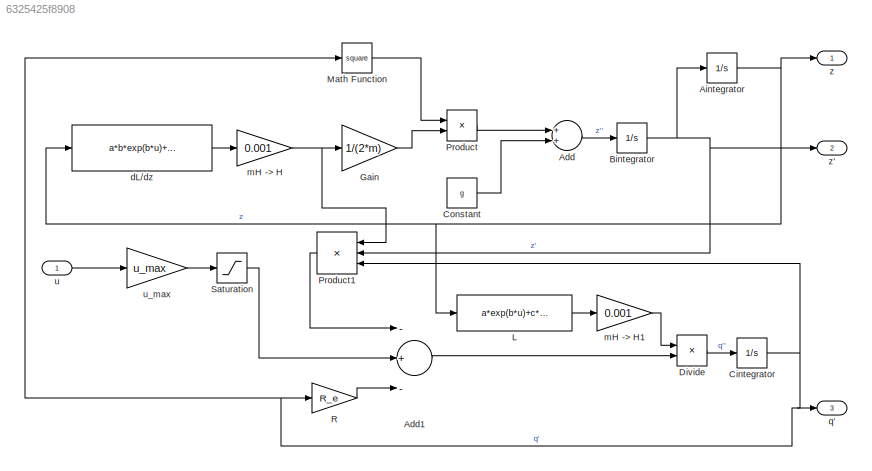
MODEL slx_6325425f8908
KIND model
CONFIG AbsTol = auto
CONFIG FixedStep = auto
CONFIG MaxStep = auto
CONFIG MinStep = auto
CONFIG RelTol = 1e-3
CONFIG SampleTimeConstraint = Unconstrained
CONFIG Solver = ode45
CONFIG SolverMode = Auto
CONFIG SolverName = ode45
CONFIG StartTime = 0.0
CONFIG StopTime = 10.0
WORKSPACE source: MATLAB code (in-file)
WORKSPACE m = 0.058
WORKSPACE u_max = 12.28
WORKSPACE g = 9.81
WORKSPACE R_e = 4.38
WORKSPACE a = 27.62
WORKSPACE b = -304.84
WORKSPACE c = 112.75
WORKSPACE d = -2.74
WORKSPACE z0 = 0.010  (= 0.01)
WORKSPACE z_min = 0
WORKSPACE z_max = 0.025
WORKSPACE i_min = 0
WORKSPACE v0 = 0.0  (= 0)
WORKSPACE sim_time = 1.5
BLOCK [Sum] Add
  InputSameDT = off
  OutDataTypeStr = Inherit: Inherit via internal rule
  Ports = [2, 1]
  SaturateOnIntegerOverflow = off
BLOCK [Sum] Add1
  InputSameDT = off
  Inputs = -+-
  OutDataTypeStr = Inherit: Inherit via internal rule
  Ports = [3, 1]
  SaturateOnIntegerOverflow = off
BLOCK [Integrator] Aintegrator
  InitialCondition = z0
  LimitOutput = on
  LowerSaturationLimit = z_min
  Ports = [1, 1]
  UpperSaturationLimit = z_max
BLOCK [Integrator] Bintegrator
  Ports = [1, 1]
BLOCK [Integrator] Cintegrator
  LimitOutput = on
  LowerSaturationLimit = i_min
  Ports = [1, 1]
BLOCK [Constant] Constant
  Value = g
BLOCK [Product] Divide
  InputSameDT = off
  Inputs = /*
  OutDataTypeStr = Inherit: Inherit via internal rule
  Ports = [2, 1]
  RndMeth = Floor
  SaturateOnIntegerOverflow = off
BLOCK [Gain] Gain
  Gain = 1/(2*m)
  OutDataTypeStr = Inherit: Inherit via internal rule
  ParamDataTypeStr = Inherit: Inherit via internal rule
  SaturateOnIntegerOverflow = off
BLOCK [Fcn] L
  Expr = a*exp(b*u)+c*exp(d*u)
BLOCK [Math] Math Function
  Operator = square
  Ports = [1, 1]
BLOCK [Product] Product
  InputSameDT = off
  OutDataTypeStr = Inherit: Inherit via internal rule
  Ports = [2, 1]
  RndMeth = Floor
  SaturateOnIntegerOverflow = off
BLOCK [Product] Product1
  InputSameDT = off
  Inputs = 3
  OutDataTypeStr = Inherit: Inherit via internal rule
  Ports = [3, 1]
  RndMeth = Floor
  SaturateOnIntegerOverflow = off
BLOCK [Gain] R
  Gain = R_e
  OutDataTypeStr = Inherit: Inherit via internal rule
  ParamDataTypeStr = Inherit: Inherit via internal rule
  SaturateOnIntegerOverflow = off
BLOCK [Saturate] Saturation
  InputPortMap = u0
  LowerLimit = 0
  Ports = [1, 1]
  UpperLimit = u_max
BLOCK [Fcn] dL//dz
  Expr = a*b*exp(b*u)+c*d*exp(d*u)
BLOCK [Gain] mH -> H
  Gain = 0.001
  OutDataTypeStr = Inherit: Inherit via internal rule
  ParamDataTypeStr = Inherit: Inherit via internal rule
  SaturateOnIntegerOverflow = off
BLOCK [Gain] mH -> H1
  Gain = 0.001
  OutDataTypeStr = Inherit: Inherit via internal rule
  ParamDataTypeStr = Inherit: Inherit via internal rule
  SaturateOnIntegerOverflow = off
BLOCK [Outport] q'
  IconDisplay = Port number
  Port = 3
BLOCK [Inport] u
  IconDisplay = Port number
BLOCK [Gain] u_max
  Gain = u_max
  OutDataTypeStr = Inherit: Inherit via internal rule
  ParamDataTypeStr = Inherit: Inherit via internal rule
  SaturateOnIntegerOverflow = off
BLOCK [Outport] z
  IconDisplay = Port number
BLOCK [Outport] z'
  IconDisplay = Port number
  Port = 2
LINE Add1:1 -> Divide:2
LINE Add:1 -> Bintegrator:1
NET Aintegrator:1 -> L:1, dL//dz:1, z:1
NET Bintegrator:1 -> Aintegrator:1, Product1:2, z':1
NET Cintegrator:1 -> Math Function:1, Product1:3, R:1, q':1
LINE Constant:1 -> Add:2
LINE Divide:1 -> Cintegrator:1
LINE Gain:1 -> Product:2
LINE L:1 -> mH -> H1:1
LINE Math Function:1 -> Product:1
LINE Product1:1 -> Add1:1
LINE Product:1 -> Add:1
LINE R:1 -> Add1:3
LINE Saturation:1 -> Add1:2
LINE dL//dz:1 -> mH -> H:1
LINE mH -> H1:1 -> Divide:1
NET mH -> H:1 -> Gain:1, Product1:1
LINE u:1 -> u_max:1
LINE u_max:1 -> Saturation:1
note: NET lines group one-source signal fan-out (src -> all destinations, sorted); 1:1 wires keep LINE
